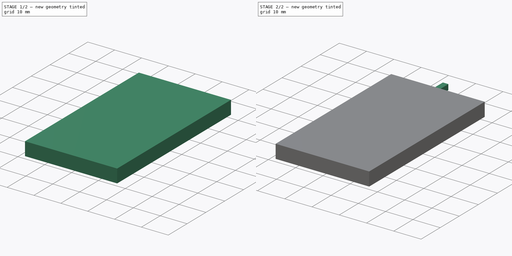
[diagram: build sequence overview — one tinted view per stage of 2, left to right]
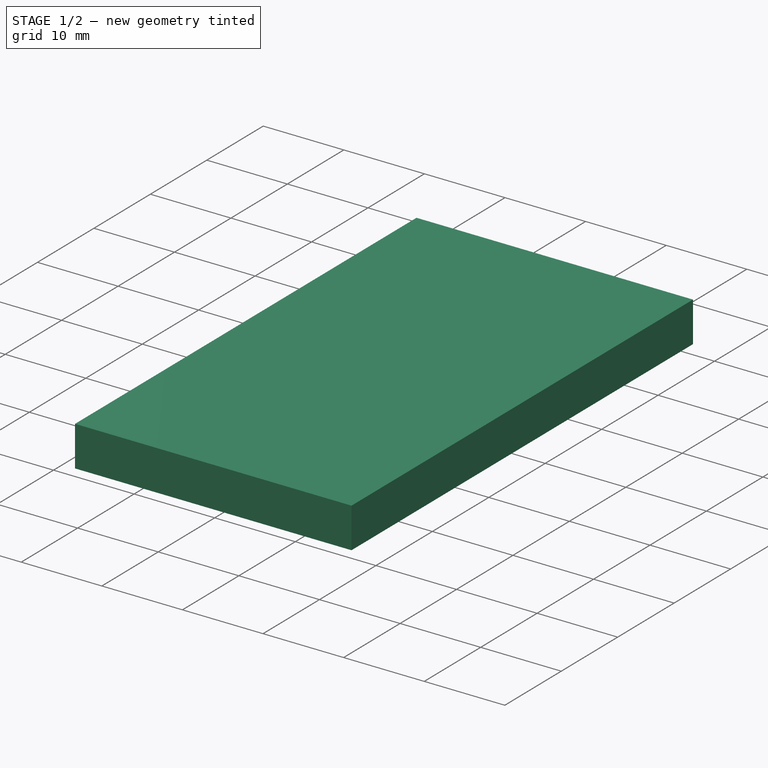
[diagram: stage 1 of 2 — iso view after this stage's code; geometry added in this stage tinted green]
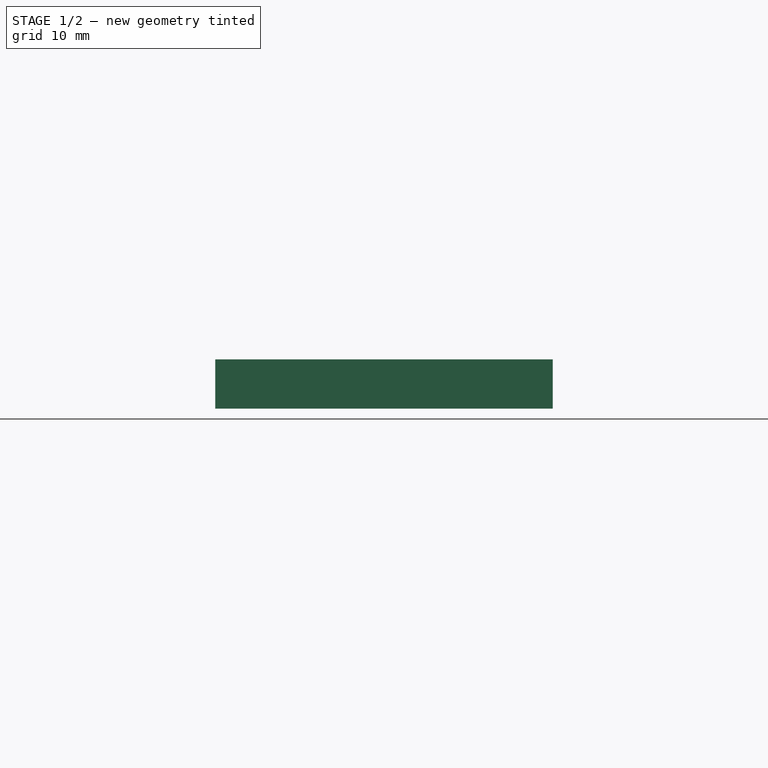
[diagram: stage 1 of 2 — front view after this stage's code; geometry added in this stage tinted green]
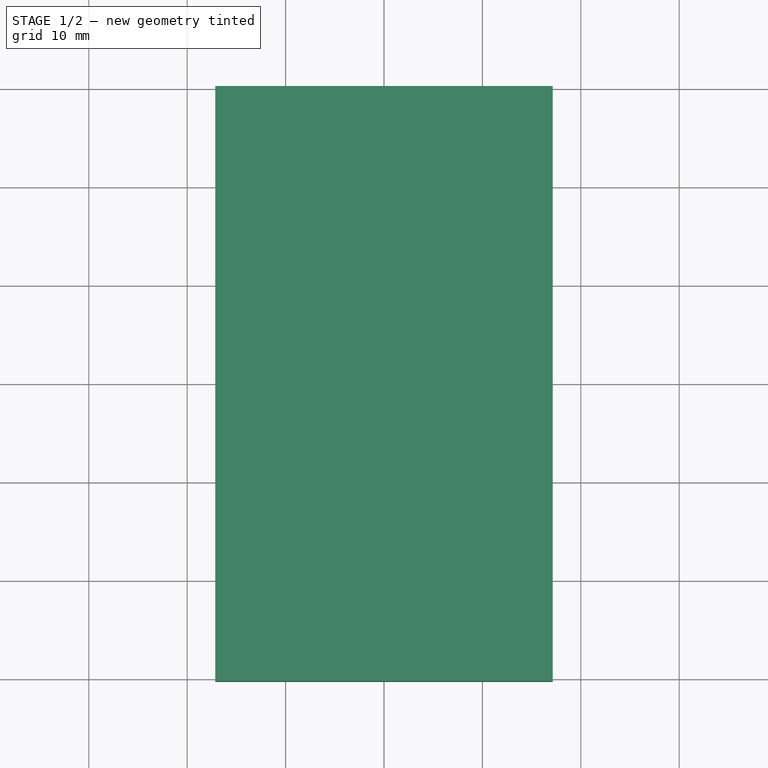
[diagram: stage 1 of 2 — top view after this stage's code; geometry added in this stage tinted green]
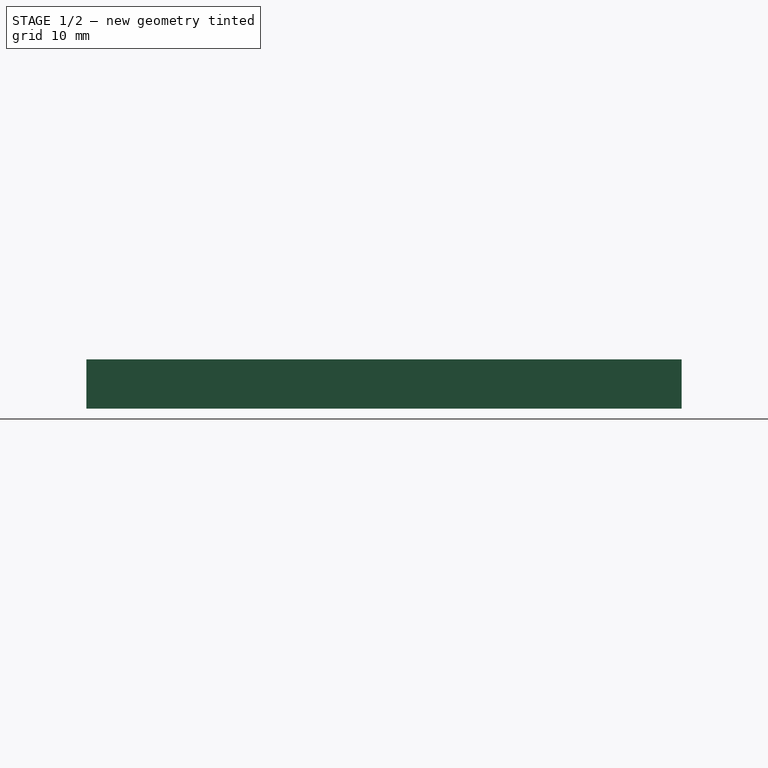
[diagram: stage 1 of 2 — right view after this stage's code; geometry added in this stage tinted green]
FCSTD DOCUMENT  (FreeCAD 0.16R5166 (Git))
Label: battery
License: CreativeCommons Attribution-ShareAlike
LicenseURL: http://creativecommons.org/licenses/by-sa/4.0/
objects: Sketcher::SketchObject×2, PartDesign::Pad×2
note: 6 computed .brp shape members not serialized (recipe doc carries the construction recipe); baked Part::Feature solids carry a one-line shape summary decoded from their .brp

FEATURE [Sketcher::SketchObject] Sketch
  sketch-geometry (4):
    g0: LineSegment StartX=-17.15 StartY=30.25 StartZ=0 EndX=17.15 EndY=30.25 EndZ=0
    g1: LineSegment StartX=17.15 StartY=30.25 StartZ=0 EndX=17.15 EndY=-30.25 EndZ=0
    g2: LineSegment StartX=17.15 StartY=-30.25 StartZ=0 EndX=-17.15 EndY=-30.25 EndZ=0
    g3: LineSegment StartX=-17.15 StartY=-30.25 StartZ=0 EndX=-17.15 EndY=30.25 EndZ=0
  constraints (11):
    c: Coincident(g0,g1)
    c: Coincident(g1,g2)
    c: Coincident(g2,g3)
    c: Coincident(g3,g0)
    c: Horizontal(g0)
    c: Horizontal(g2)
    c: Vertical(g1)
    c: Vertical(g3)
    c: Symmetric(g1,g0,g-1)
    c: DistanceX(g0) = 34.3
    c: DistanceY(g1) = -60.5
FEATURE [PartDesign::Pad] Pad
  Length = 5
  Length2 = 100
  Midplane = true
  Sketch = -> Sketch
  Type = 0
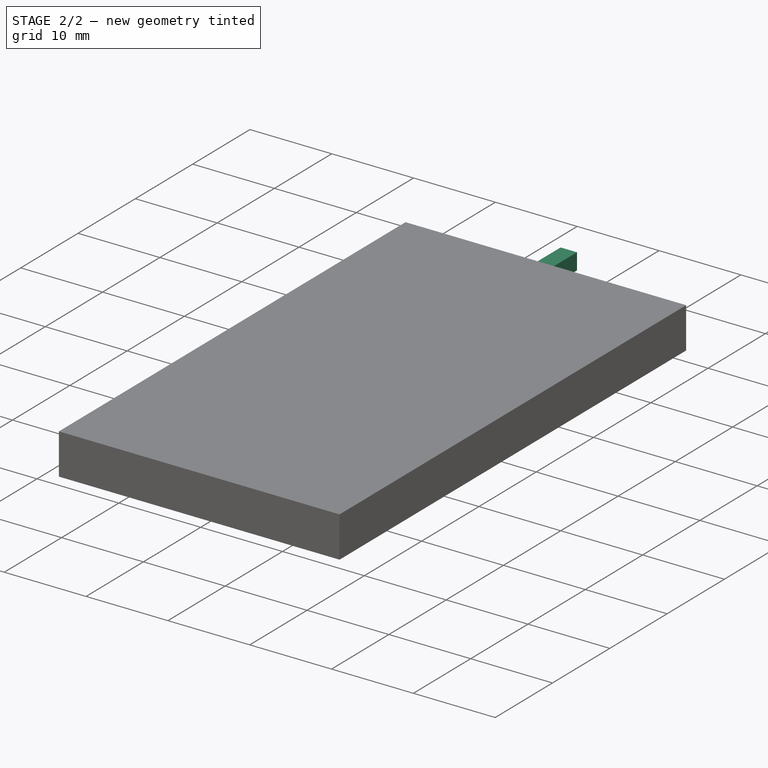
[diagram: stage 2 of 2 — iso view after this stage's code; geometry added in this stage tinted green]
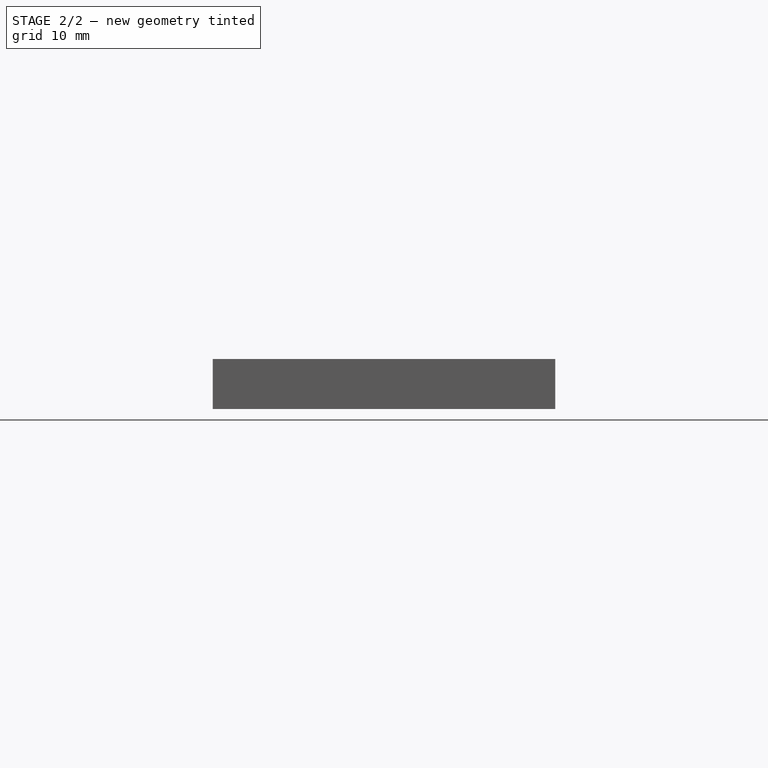
[diagram: stage 2 of 2 — front view after this stage's code; geometry added in this stage tinted green]
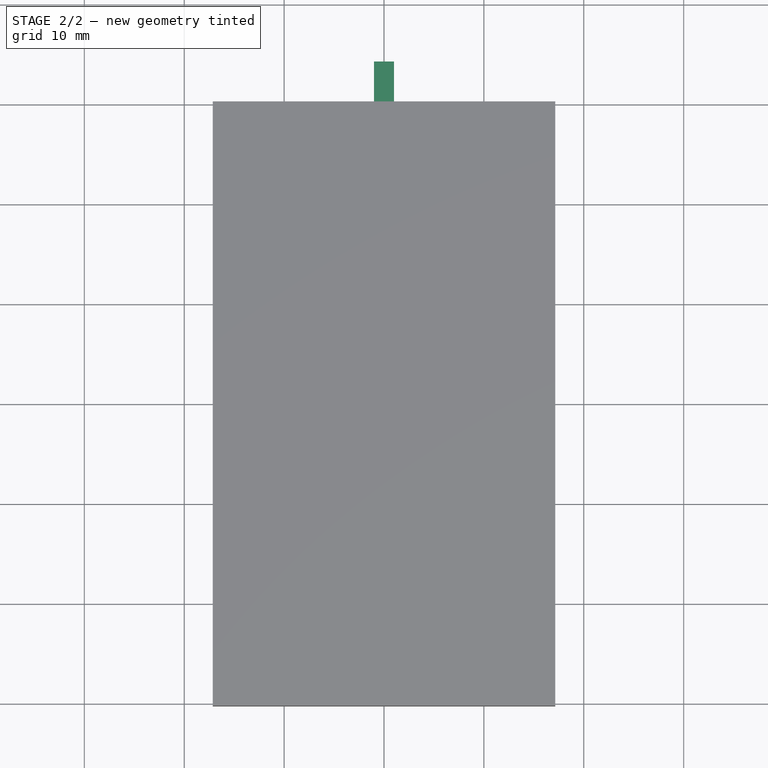
[diagram: stage 2 of 2 — top view after this stage's code; geometry added in this stage tinted green]
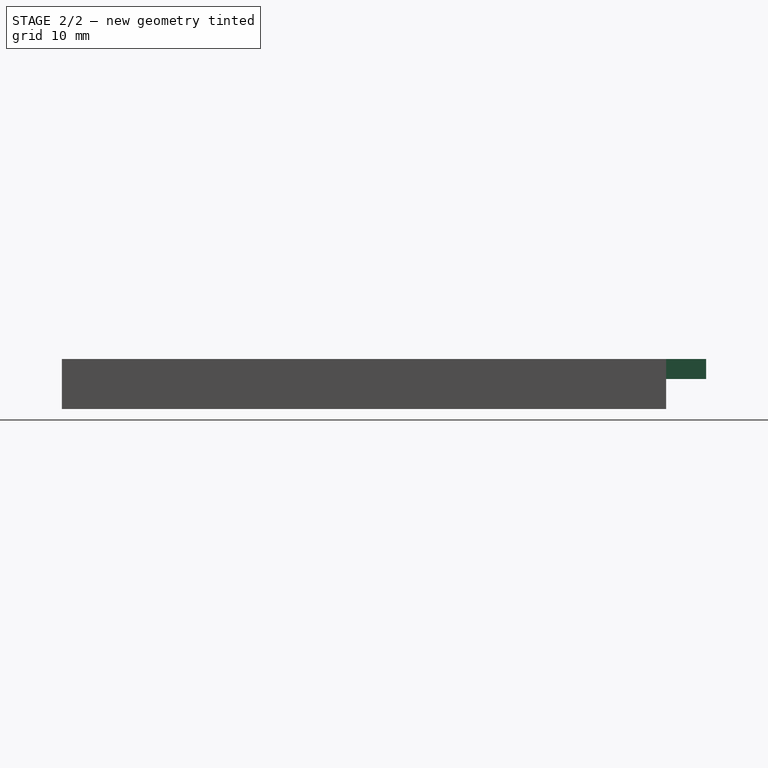
[diagram: stage 2 of 2 — right view after this stage's code; geometry added in this stage tinted green]
FEATURE [Sketcher::SketchObject] Sketch001
  ExternalGeometry = -> [Pad]
  Placement = pos=(0,30.25,0) rot=(0,0.707107,0.707107;3.14159rad)
  Support = -> Pad [Face1]
  sketch-geometry (4):
    g0: LineSegment StartX=-1 StartY=2.5 StartZ=0 EndX=1 EndY=2.5 EndZ=0
    g1: LineSegment StartX=1 StartY=2.5 StartZ=0 EndX=1 EndY=0.5 EndZ=0
    g2: LineSegment StartX=1 StartY=0.5 StartZ=0 EndX=-1 EndY=0.5 EndZ=0
    g3: LineSegment StartX=-1 StartY=0.5 StartZ=0 EndX=-1 EndY=2.5 EndZ=0
  constraints (12):
    c: Coincident(g0,g1)
    c: Coincident(g1,g2)
    c: Coincident(g2,g3)
    c: Coincident(g3,g0)
    c: Horizontal(g0)
    c: Horizontal(g2)
    c: Vertical(g1)
    c: Vertical(g3)
    c: Symmetric(g0,g0,g-2)
    c: PointOnObject(g0,g-3)
    c: Equal(g2,g1)
    c: DistanceY(g1) = -2
FEATURE [PartDesign::Pad] Pad001  label="battery"
  Length = 4
  Length2 = 100
  Sketch = -> Sketch001
  Type = 0
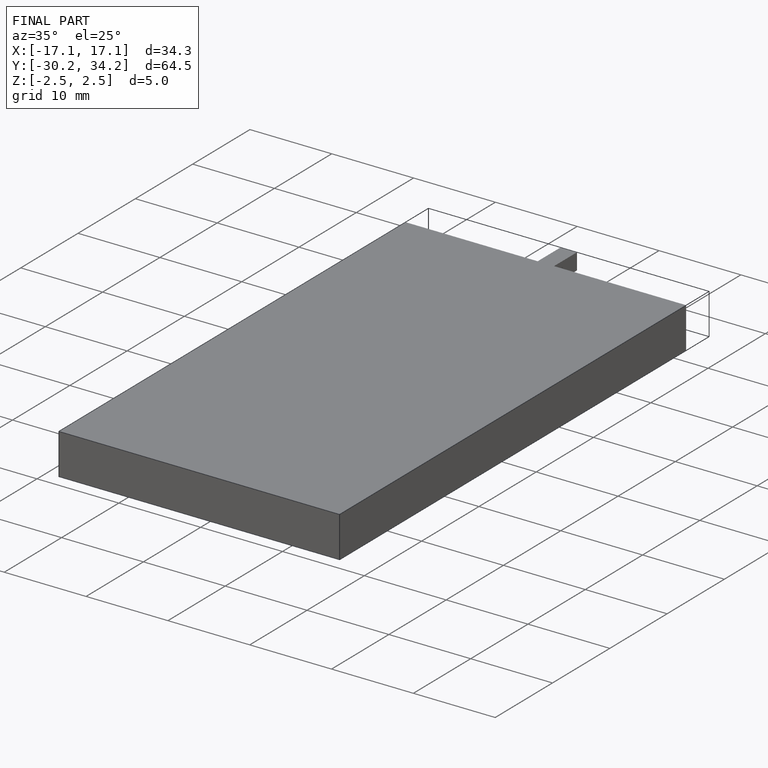
[diagram: finished part — iso view with bounding-box wireframe]
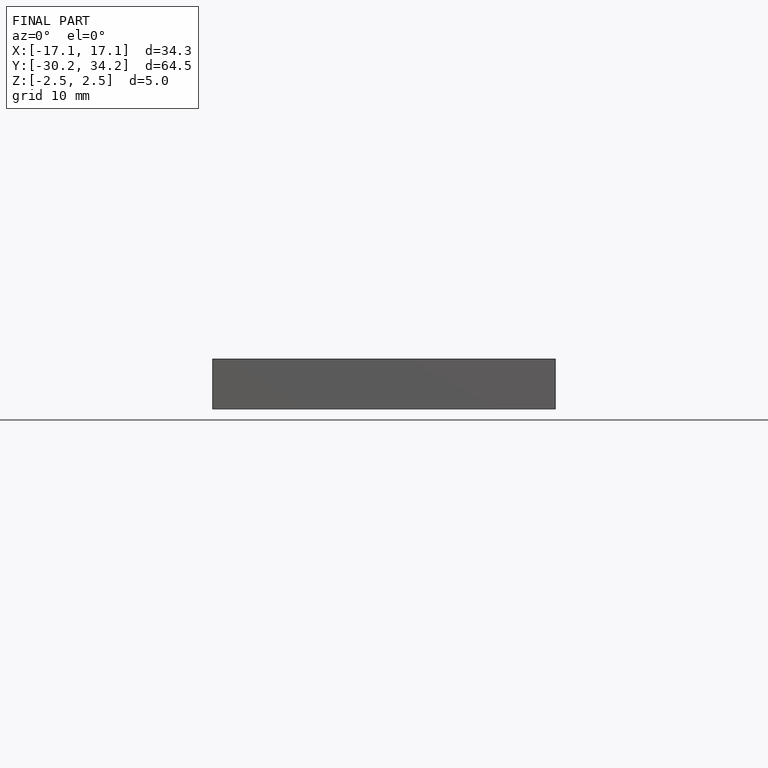
[diagram: finished part — front view with bounding-box wireframe]
